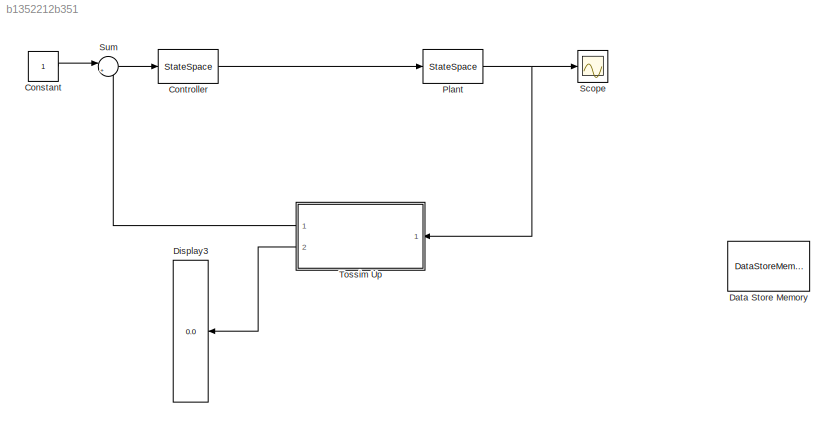
MODEL slx_b1352212b351
KIND model
CONFIG AbsTol = auto
CONFIG EnableMultiTasking = off
CONFIG FixedStep = auto
CONFIG MaxStep = auto
CONFIG MinStep = auto
CONFIG RelTol = 1e-3
CONFIG SampleTimeConstraint = Unconstrained
CONFIG Solver = VariableStepAuto
CONFIG SolverName = VariableStepAuto
CONFIG StartTime = 0.0
CONFIG StopTime = 10.0
BLOCK [Constant] Constant
BLOCK [StateSpace] Controller
  A = Ac
  B = Bc
  C = Cc
  D = Dc
  InitialCondition = 0
  Ports = [1, 1]
BLOCK [DataStoreMemory] Data Store Memory
  DataStoreName = ydelay_global
  InitialValue = [1; 1; 1; 1; 1; 1; 1; 1; 1; 1; 1; 1; 1; 1; 1]
  OutDataTypeStr = uint32
  ReadBeforeWriteMsg = warning
  ShowAdditionalParam = off
  SignalType = real
  WriteAfterReadMsg = warning
  WriteAfterWriteMsg = warning
BLOCK [Display] Display3
  Decimation = 1
  Ports = [1]
BLOCK [StateSpace] Plant
  A = A
  B = B
  C = C
  D = D
  InitialCondition = 0
  Ports = [1, 1]
BLOCK [Scope] Scope
  Floating = off
  NumInputPorts = 1
  Ports = [1]
  ScopeSpecificationString = Simulink.scopes.TimeScopeBlockCfg('CurrentConfiguration', extmgr.ConfigurationSet(extmgr.Configuration('Core','General UI',true),extmgr.Configuration('Core','Source UI',true),extmgr.Configuration('Sources','WiredSimulink',true),extmgr.Configuration('Visuals','Time Domain',true,'SerializedDisplays',{struct('MinYLimReal','-273220327093935.00000','MaxYLimReal','111935172468380.75','YLabelReal','','Mi...<+1513ch>
BLOCK [Sum] Sum
  IconShape = round
  InputSameDT = off
  Inputs = |+-
  OutDataTypeStr = Inherit: Inherit via internal rule
  Ports = [2, 1]
  SaturateOnIntegerOverflow = off
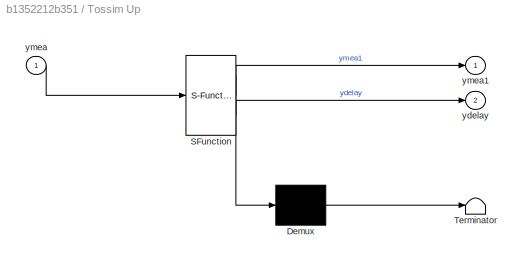
BLOCK [SubSystem] Tossim Up
  ErrorFcn = Stateflow.Translate.translate
  PermitHierarchicalResolution = ExplicitOnly
  Ports = [1, 2]
  RequestExecContextInheritance = off
  SFBlockType = MATLAB Function
  TreatAsAtomicUnit = on
BLOCK [Demux] Tossim Up/ Demux 
  Outputs = 1
  Ports = [1, 1]
BLOCK [S-Function] Tossim Up/ SFunction 
  EnableBusSupport = on
  FunctionName = sf_sfun
  PortCounts = [1 3]
  Ports = [1, 3]
  SFcnIsStateOwnerBlock = off
  SFunctionDeploymentMode = off
  Tag = Stateflow S-Function TestWCPS_v1 1
BLOCK [Terminator] Tossim Up/ Terminator 
BLOCK [Outport] Tossim Up/ydelay
  IconDisplay = Port number
  Port = 2
BLOCK [Inport] Tossim Up/ymea
  IconDisplay = Port number
BLOCK [Outport] Tossim Up/ymea1
  IconDisplay = Port number
LINE Constant:1 -> Sum:1
LINE Controller:1 -> Plant:1
NET Plant:1 -> Scope:1, Tossim Up:1
LINE Sum:1 -> Controller:1
LINE Tossim Up:1 -> Sum:2
LINE Tossim Up:2 -> Display3:1
note: NET lines group one-source signal fan-out (src -> all destinations, sorted); 1:1 wires keep LINE
CHART Tossim Up states=1 transitions=1
  STATE_LABEL 'eML_blk_kernel()'
  STATE_LABEL "SCRIPT:\nfunction [ymea1, ydelay]  = Tossim_block(ymea)\n% Inputs:\n% ymea: measurement from structure\n% Outputs:\n% ymea1: measurement output\n% ydelay: delay traces\npersistent delay1 % delay trace\npersistent i  % count\nglobal ydelay_global\n\n\n% allow these matlab functions to be used in Embedded Matlab block\neml.extrinsic('python');\neml.extrinsic('num2str');\neml.extrinsic('str2num');\neml.extrinsic('de...<+630ch>"
